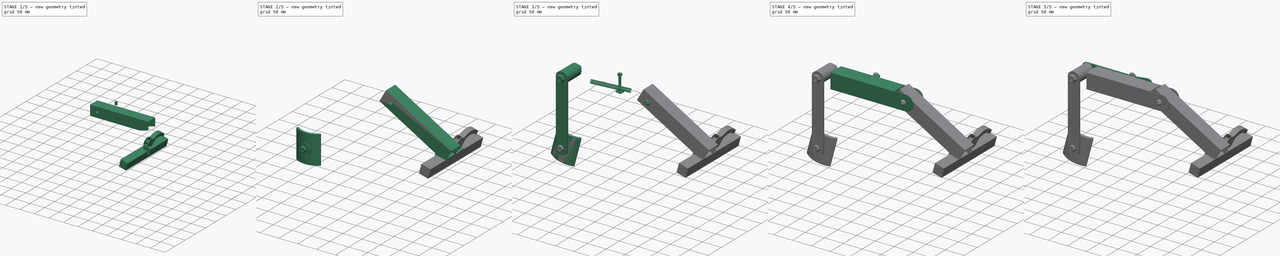
[diagram: build sequence overview — one tinted view per stage of 5, left to right]
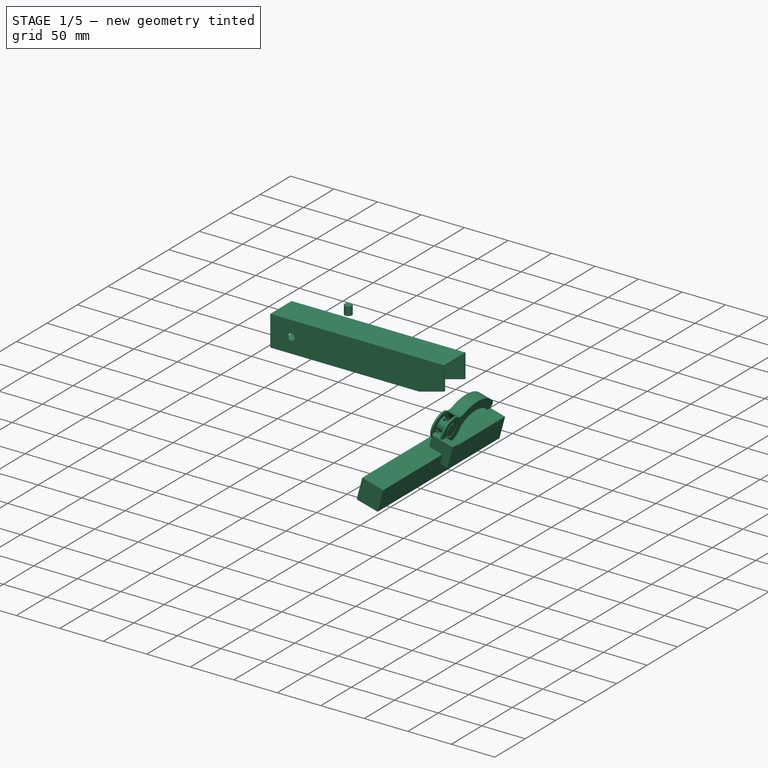
[diagram: stage 1 of 5 — iso view after this stage's code; geometry added in this stage tinted green]
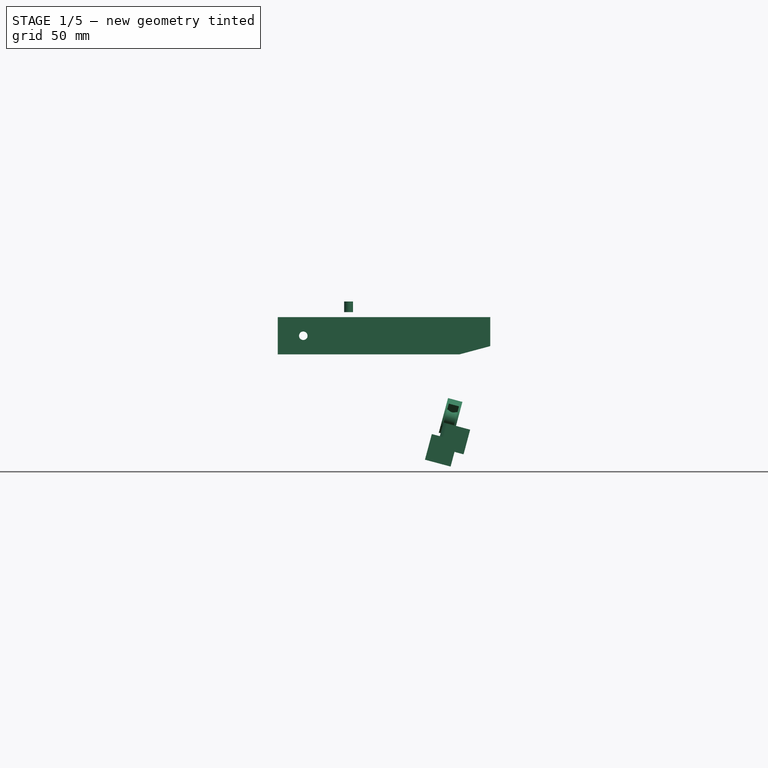
[diagram: stage 1 of 5 — front view after this stage's code; geometry added in this stage tinted green]
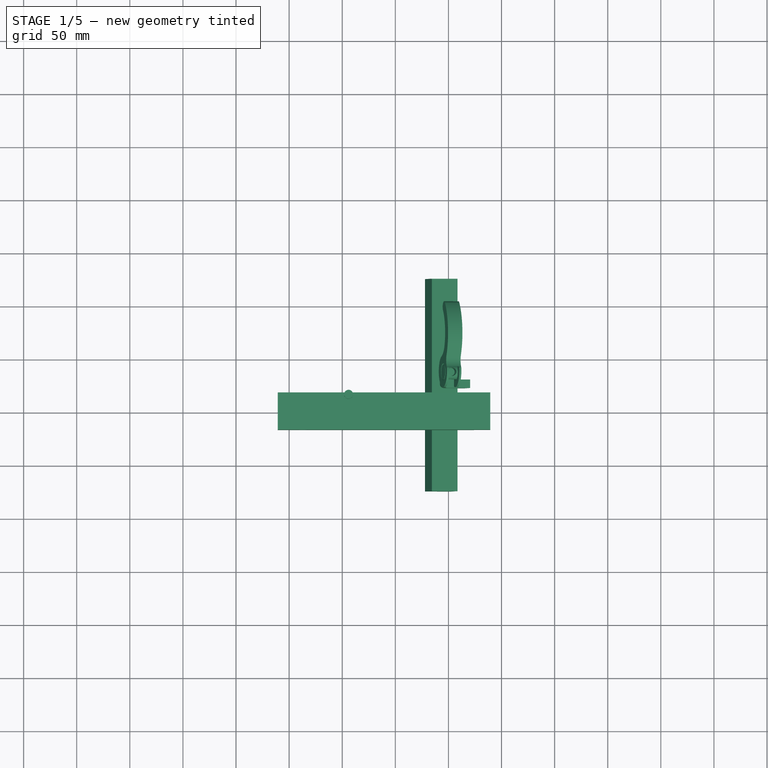
[diagram: stage 1 of 5 — top view after this stage's code; geometry added in this stage tinted green]
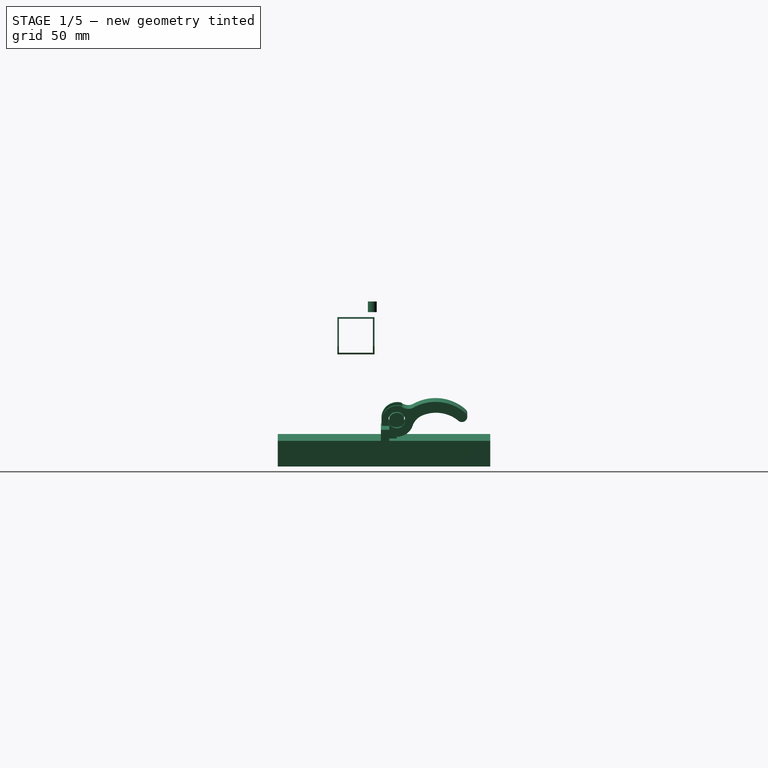
[diagram: stage 1 of 5 — right view after this stage's code; geometry added in this stage tinted green]
FCSTD DOCUMENT  (FreeCAD 0.16R6700 (Git))
Label: Bras_antiG
License: All rights reserved
LicenseURL: http://en.wikipedia.org/wiki/All_rights_reserved
objects: Part::Cut×26, Part::Box×21, Part::Cylinder×20, Part::Fillet×20, Part::MultiFuse×16, Part::FeaturePython×13, Part::Feature×10, App::DocumentObjectGroup×7, Sketcher::SketchObject×2, Part::Helix×1, Part::Sweep×1, Part::Part2DObjectPython×1, Part::Extrusion×1
note: 132 computed .brp shape members not serialized (recipe doc carries the construction recipe); baked Part::Feature solids carry a one-line shape summary decoded from their .brp

FEATURE [Part::Cylinder] Cylinder  label="Cylindre"
  Angle = 360
  Height = 10
  Placement = pos=(56,15,26) rot=(0,0,1;0rad)
  Radius = 4.2
FEATURE [Part::Box] Box005  label="Cube005"
  Height = 35
  Length = 200
  Width = 35
FEATURE [Part::Box] Box006  label="Cube006"
  Height = 32
  Length = 200
  Placement = pos=(0,1.5,1.5) rot=(0,0,1;0rad)
  Width = 32
FEATURE [Part::Cut] Cut004
  Base = -> Box005
  Tool = -> Box006
FEATURE [Part::Box] Box007  label="Cube007"
  Height = 30
  Length = 30
  Placement = pos=(-8,-14,-21.18) rot=(0,1,0;0.261799rad)
  Width = 52
FEATURE [Part::Cut] Cut005
  Base = -> Cut004
  Tool = -> Box007
FEATURE [Part::Cylinder] Cylinder001  label="Cylindre001"
  Angle = 360
  Height = 50
  Placement = pos=(176,42,17.5) rot=(1,0,0;1.5708rad)
  Radius = 4
FEATURE [Part::Cut] Cut006
  Base = -> Cut005
  Placement = pos=(189.344,17.0692,-13.8221) rot=(0,0,1;3.14159rad)
  Tool = -> Cylinder001
FEATURE [App::DocumentObjectGroup] Set002
FEATURE [App::DocumentObjectGroup] WorkPoints
  Group = -> [Set,Set001,Set002]
FEATURE [Part::Feature] Cylinder_Axis
  shape: bbox 2e-07 x 6.033 x 2e-07 mm, 0 faces, 0 solids (baked)
FEATURE [Part::Feature] Axis_extended
  shape: bbox 2e-07 x 18.1 x 2e-07 mm, 0 faces, 0 solids (baked)
FEATURE [App::DocumentObjectGroup] WorkAxis
  Group = -> [Cylinder_Axis,Axis_extended]
FEATURE [App::DocumentObjectGroup] WorkFeatures
  Group = -> [WorkPoints,Rot_Trans,WorkAxis]
FEATURE [Part::Box] Box017  label="Cube017"
  Height = 24
  Length = 26
  Placement = pos=(146,22,-105) rot=(0,0,1;0rad)
  Width = 8
FEATURE [Part::Fillet] Fillet015
  Base = -> Box017
  Edges = 1 edges r=4: [Edge1]
  Placement = pos=(25.3,1,38) rot=(0,1,0;0.261799rad)
FEATURE [Part::Box] Box018  label="Cube018"
  Height = 11
  Length = 8.3
  Placement = pos=(140.6,28,-96) rot=(0,1,0;0.261799rad)
  Width = 10
FEATURE [Part::MultiFuse] Fusion013
  Shapes = -> [Fillet015,Box018]
FEATURE [Part::Box] Box019  label="Cube019"
  Height = 25
  Length = 25
  Placement = pos=(127.9,-74,-113) rot=(0,1,0;0.261799rad)
  Width = 200
FEATURE [Part::FeaturePython] ScrewTap  label="M8x20.0-ScrewTap"  # Fasteners workbench fastener (typed FeaturePython)
  Placement = pos=(152,38,-70) rot=(0,1,0;0.261799rad)
  diameter = 9
  invert = false
  length = 20
  matchOuter = false
  offset = 0
  thread = true
FEATURE [Part::MultiFuse] Fusion014
  Shapes = -> [ScrewTap,Box019]
FEATURE [Sketcher::SketchObject] Sketch
  sketch-geometry (6):
    g0: ArcOfCircle CenterX=43.2504 CenterY=32.5348 CenterZ=0 NormalX=0 NormalY=0 NormalZ=1 Radius=41.9401 StartAngle=2.40373 EndAngle=3.65923
    g1: ArcOfCircle CenterX=-1.92886 CenterY=6.80872 CenterZ=0 NormalX=0 NormalY=0 NormalZ=1 Radius=10.0503 StartAngle=5.53887 EndAngle=6.80082
    g2: ArcOfCircle CenterX=20.0786 CenterY=-3.37712 CenterZ=0 NormalX=0 NormalY=0 NormalZ=1 Radius=15 StartAngle=2.9145 EndAngle=7.53868
    g3: ArcOfCircle CenterX=29.9765 CenterY=26.9675 CenterZ=0 NormalX=0 NormalY=0 NormalZ=1 Radius=16.9181 StartAngle=3.53297 EndAngle=4.39709
    g4: ArcOfCircle CenterX=44.3877 CenterY=32.9146 CenterZ=0 NormalX=0 NormalY=0 NormalZ=1 Radius=32.5082 StartAngle=2.43161 EndAngle=3.53297
    g5: ArcOfCircle CenterX=15.9302 CenterY=57.3739 CenterZ=0 NormalX=0 NormalY=0 NormalZ=1 Radius=5.01628 StartAngle=5.5732 EndAngle=8.68692
  constraints (13):
    c: Coincident(g1,g0)
    c: PointOnObject(g1,g-1)
    c: Tangent(g0,g1)
    c: Coincident(g2,g1)
    c: Coincident(g3,g2)
    c: Tangent(g3,g2)
    c: Coincident(g4,g3)
    c: Coincident(g5,g0)
    c: Coincident(g5,g4)
    c: Radius(g2) = 15
    c: Tangent(g4,g3)
    c: Tangent(g4,g5)
    c: Tangent(g5,g0)
FEATURE [Part::Part2DObjectPython] DWire  # Draft 2D object (typed FeaturePython)
  Base = -> Sketch
  ChamferSize = 0
  Closed = true
  End = (19.7344,54.1041,0)
  FilletRadius = 0
  Length = 141.472
  MakeFace = true
  Points = (6) [(12.2187,60.7483,0),(6.80477,11.7819,0),(5.46368,-2.14939e-13,0),(24.7301,10.8834,0),(14.3377,20.5139,0),(19.7344,54.1041,0)]
  Start = (12.2187,60.7483,0)
  Subdivisions = 0
FEATURE [Part::Extrusion] Extrude
  Base = -> DWire
  Dir = (0,0,14)
  Solid = false
FEATURE [Part::Cylinder] Cylinder017  label="Cylindre017"
  Angle = 360
  Height = 43
  Placement = pos=(19,-4,-10) rot=(0,0,1;0rad)
  Radius = 8
FEATURE [Part::Cut] Cut023
  Base = -> Extrude
  Tool = -> Cylinder017
FEATURE [Part::Box] Box020  label="Cube020"
  Height = 10
  Length = 32
  Placement = pos=(17,-28,2) rot=(0,0,1;0.593412rad)
  Width = 30
FEATURE [Part::Cut] Cut024
  Base = -> Cut023
  Tool = -> Box020
FEATURE [Part::Cylinder] Cylinder018  label="Cylindre018"
  Angle = 360
  Height = 14
  Placement = pos=(19,-4,0) rot=(0,0,1;0rad)
  Radius = 7
FEATURE [Part::Cylinder] Cylinder019  label="Cylindre019"
  Angle = 360
  Height = 50
  Placement = pos=(0,-4,7) rot=(0,1,0;1.5708rad)
  Radius = 4
FEATURE [Part::Cut] Cut025
  Base = -> Cylinder018
  Tool = -> Cylinder019
FEATURE [Part::MultiFuse] Fusion015
  Placement = pos=(150,42,-53.7) rot=(0,1,0;1.8326rad)
  Shapes = -> [Cut025,Cut024]
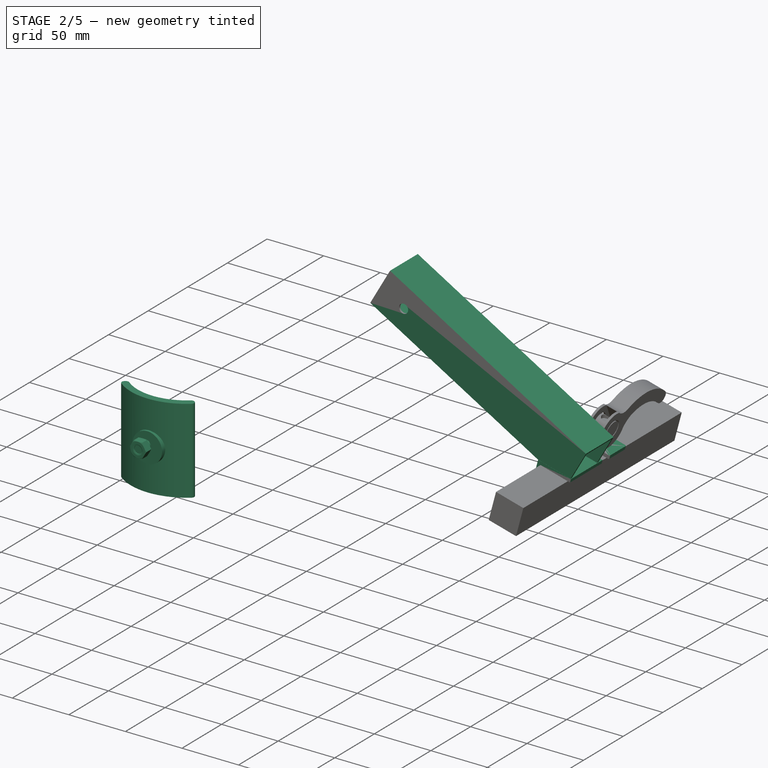
[diagram: stage 2 of 5 — iso view after this stage's code; geometry added in this stage tinted green]
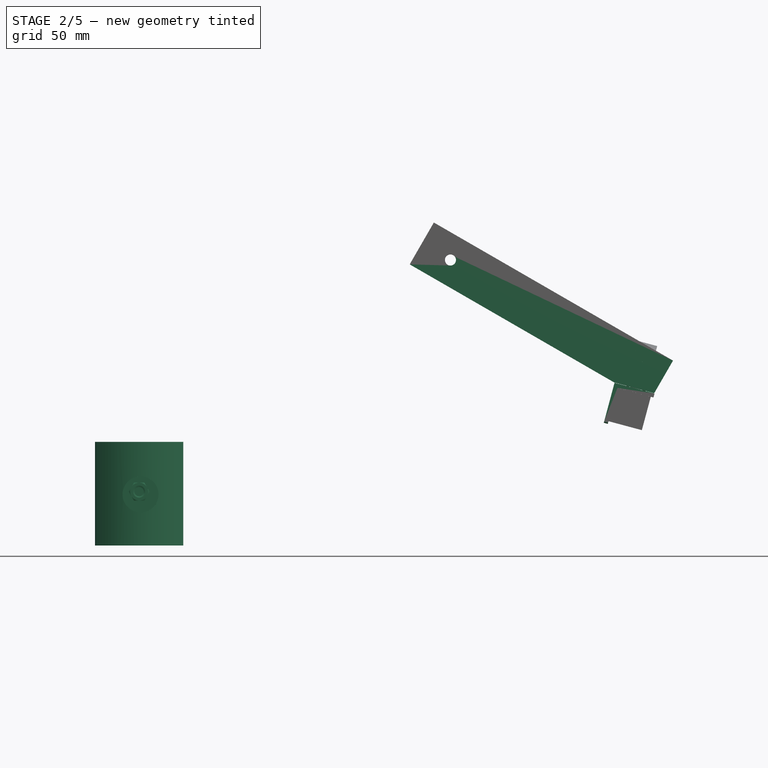
[diagram: stage 2 of 5 — front view after this stage's code; geometry added in this stage tinted green]
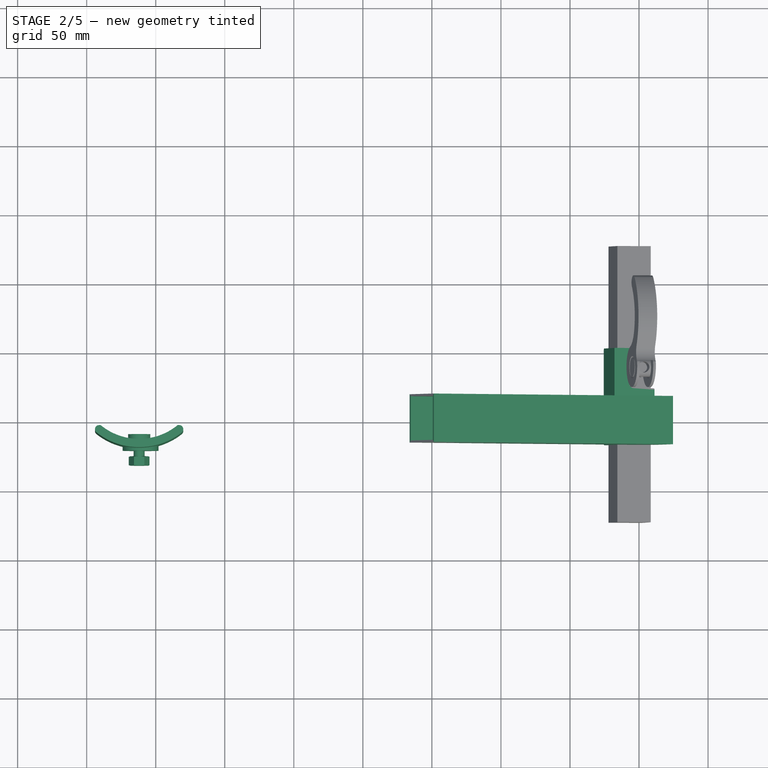
[diagram: stage 2 of 5 — top view after this stage's code; geometry added in this stage tinted green]
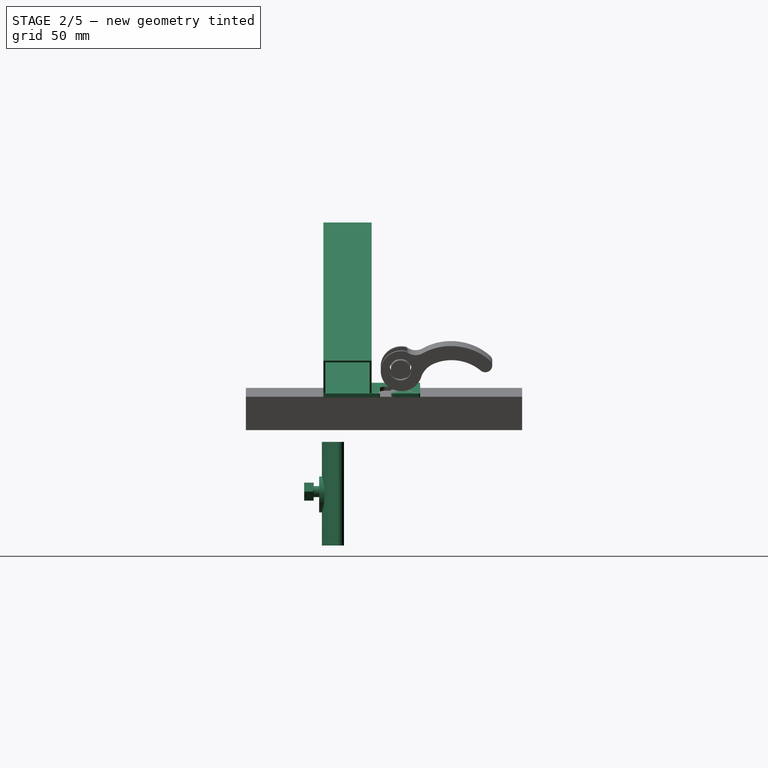
[diagram: stage 2 of 5 — right view after this stage's code; geometry added in this stage tinted green]
FEATURE [Part::Box] Box003  label="Cube003"
  Height = 30
  Length = 70
  Width = 30
FEATURE [Part::Box] Box004  label="Cube004"
  Height = 27
  Length = 70
  Width = 27
FEATURE [Part::Cut] Cut002
  Base = -> Box003
  Tool = -> Box004
FEATURE [Part::Cut] Cut003
  Base = -> Cut002
  Placement = pos=(197.429,-17.8616,-35.1226) rot=(-0.129428,-0.129428,0.983106;1.58783rad)
  Tool = -> Cylinder
FEATURE [Part::MultiFuse] Fusion003
  Placement = pos=(0.058657,0,7.21891) rot=(0,1,0;0.523599rad)
  Shapes = -> [Cut003,Cut006]
FEATURE [Part::Cylinder] Cylinder012  label="Cylindre012"
  Angle = 360
  Height = 8
  Placement = pos=(-211,-13,-166) rot=(1,0,0;1.5708rad)
  Radius = 13
FEATURE [Part::Cylinder] Cylinder013  label="Cylindre013"
  Angle = 360
  Height = 75
  Placement = pos=(-212,31,-203) rot=(0,0,1;0rad)
  Radius = 50
FEATURE [Part::Cylinder] Cylinder014  label="Cylindre014"
  Angle = 360
  Height = 75
  Placement = pos=(-212,31,-203) rot=(0,0,1;0rad)
  Radius = 44
FEATURE [Part::Cut] Cut017
  Base = -> Cylinder013
  Tool = -> Cylinder014
FEATURE [Part::MultiFuse] Fusion011
  Shapes = -> [Cylinder012,Cut017]
FEATURE [Part::Box] Box016  label="Cube016"
  Height = 150
  Length = 120
  Placement = pos=(-269,-3,-220) rot=(0,0,1;0rad)
  Width = 100
FEATURE [Part::Cut] Cut018
  Base = -> Fusion011
  Tool = -> Box016
FEATURE [Part::Fillet] Fillet012
  Base = -> Cut018
  Edges = 2 edges r=3: [Edge6,Edge8]
FEATURE [Part::Cylinder] Cylinder015  label="Cylindre015"
  Angle = 360
  Height = 20
  Placement = pos=(-212,-10,-164) rot=(1,0,0;1.5708rad)
  Radius = 4
FEATURE [Part::Cylinder] Cylinder016  label="Cylindre016"
  Angle = 360
  Height = 10
  Placement = pos=(-212,-9,-164) rot=(1,0,0;1.5708rad)
  Radius = 8
FEATURE [Part::FeaturePython] Screw005  label="M8x12-Screw"  # Fasteners workbench fastener (typed FeaturePython)
  Placement = pos=(-212,-19,-164) rot=(-1,0,0;1.5708rad)
  diameter = 8
  invert = false
  length = 1
  matchOuter = false
  offset = 0
  thread = false
  type = 6
FEATURE [Part::FeaturePython] Nut005  label="M8-Nut003"  # Fasteners workbench fastener (typed FeaturePython)
  Placement = pos=(-212,-25,-164) rot=(1,0,0;1.5708rad)
  diameter = 9
  invert = false
  matchOuter = false
  offset = 0
  thread = false
  type = 1
FEATURE [Part::MultiFuse] Fusion012
  Shapes = -> [Screw005,Nut005]
FEATURE [Part::Cut] Cut022
  Base = -> Fusion003
  Tool = -> Fusion013
FEATURE [Part::Fillet] Fillet016
  Base = -> Cut022
  Edges = 1 edges r=1: [Edge42]
FEATURE [Part::Fillet] Fillet017
  Base = -> Fillet016
  Edges = 3 edges r=1: [Edge18,Edge22,Edge42]
FEATURE [Part::Fillet] Fillet018
  Base = -> Fillet017
  Edges = 1 edges r=1: [Edge36]
FEATURE [Part::Fillet] Fillet019
  Base = -> Fillet018
  Edges = 1 edges r=1: [Edge49]
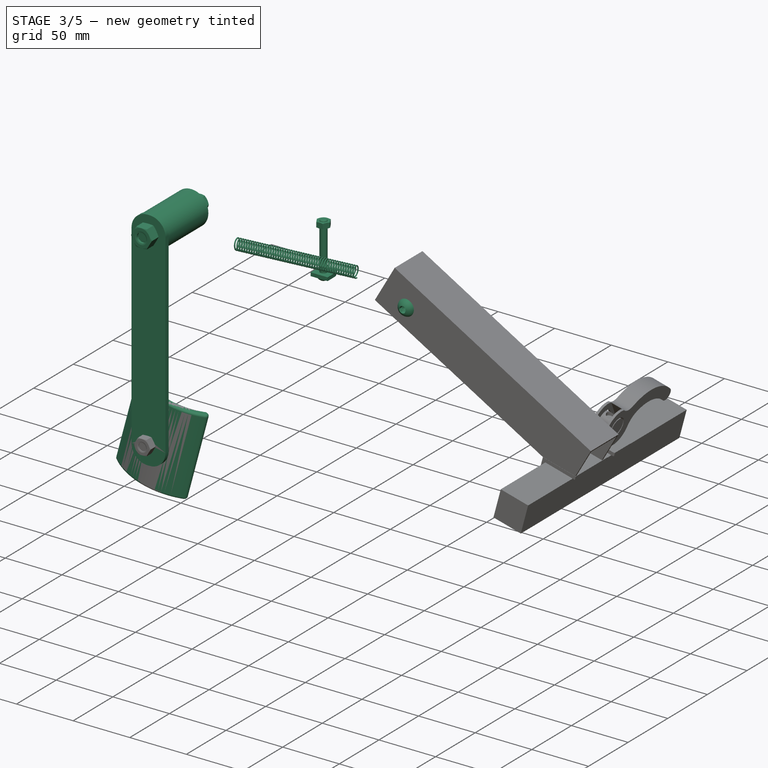
[diagram: stage 3 of 5 — iso view after this stage's code; geometry added in this stage tinted green]
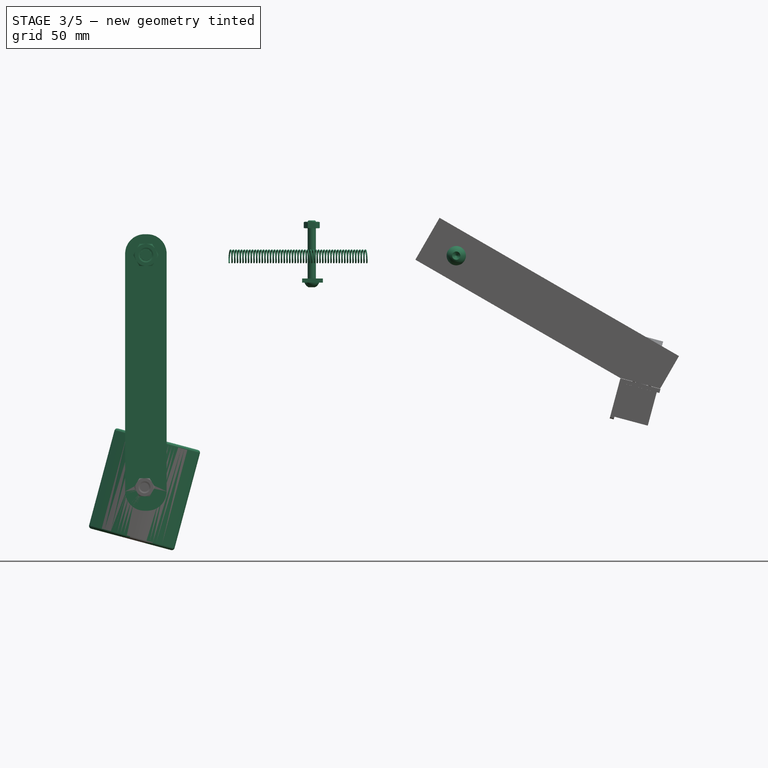
[diagram: stage 3 of 5 — front view after this stage's code; geometry added in this stage tinted green]
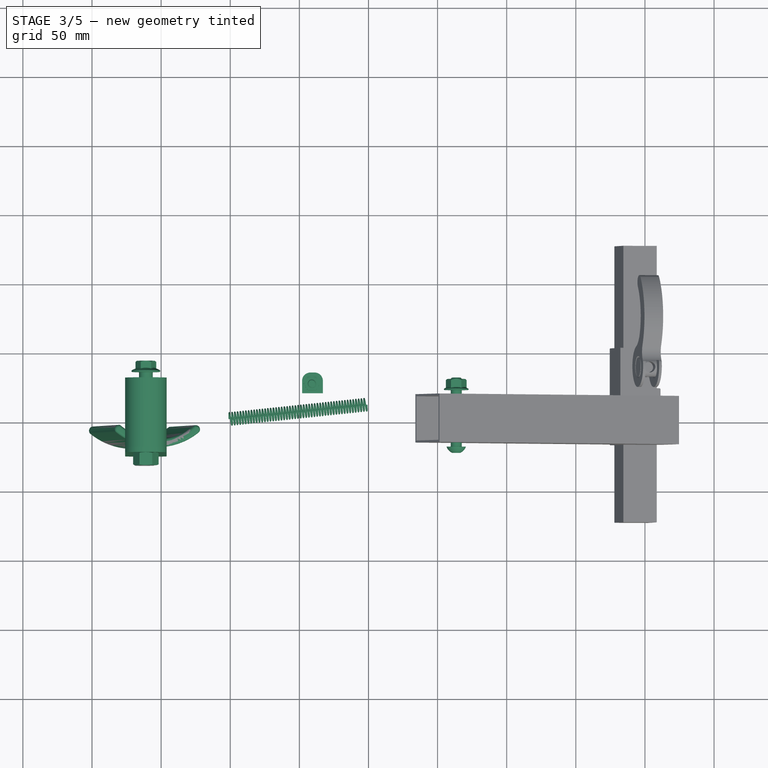
[diagram: stage 3 of 5 — top view after this stage's code; geometry added in this stage tinted green]
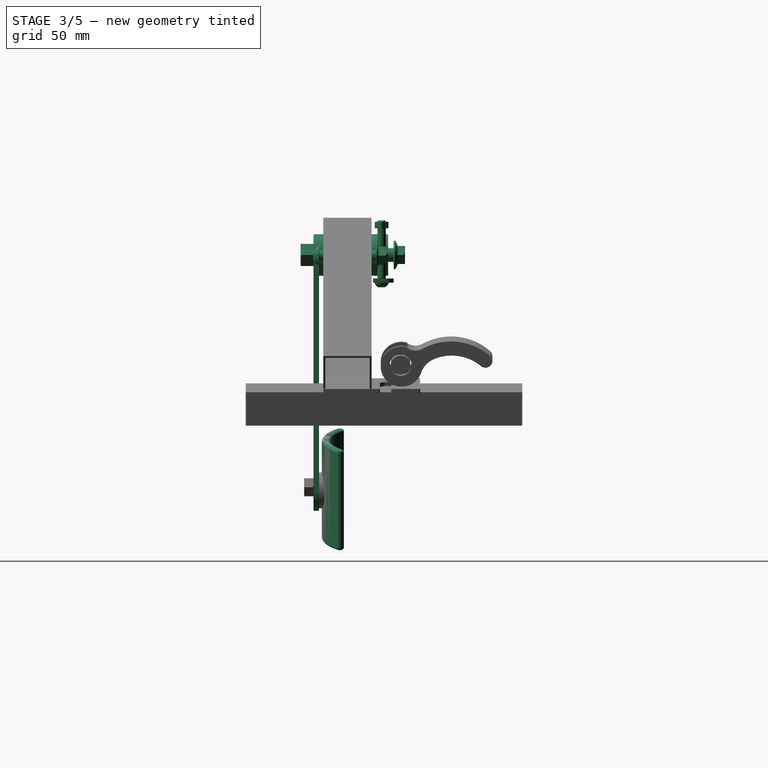
[diagram: stage 3 of 5 — right view after this stage's code; geometry added in this stage tinted green]
FEATURE [Part::FeaturePython] Screw  label="M8x50-Screw"  # Fasteners workbench fastener (typed FeaturePython)
  Placement = pos=(13.5,-21,3.5) rot=(1,0,0;1.5708rad)
  diameter = 5
  invert = false
  length = 9
  matchOuter = false
  offset = 0
  thread = false
  type = 20
FEATURE [Part::FeaturePython] Nut  label="M8-Nut"  # Fasteners workbench fastener (typed FeaturePython)
  Placement = pos=(13.5,20,3.5) rot=(-1,0,0;1.5708rad)
  diameter = 3
  invert = false
  matchOuter = false
  offset = 0
  thread = false
  type = 0
FEATURE [Part::Box] Box013  label="Cube013"
  Height = 3
  Length = 15
  Placement = pos=(-98,18,20) rot=(0,0,1;0rad)
  Width = 15
FEATURE [Part::Fillet] Fillet009
  Base = -> Box013
  Edges = 2 edges r=6: [Edge3,Edge7]
  Placement = pos=(0,0,-36) rot=(0,0,1;0rad)
FEATURE [Part::FeaturePython] Screw003  label="M6x45-Screw"  # Fasteners workbench fastener (typed FeaturePython)
  Placement = pos=(-91,24.3,-16) rot=(0,1,0;3.14159rad)
  diameter = 4
  invert = false
  length = 9
  matchOuter = false
  offset = 0
  thread = false
  type = 20
FEATURE [Part::FeaturePython] Nut003  label="M6-Nut"  # Fasteners workbench fastener (typed FeaturePython)
  Placement = pos=(-91,24.3,23.3) rot=(0,0,1;0rad)
  diameter = 8
  invert = false
  matchOuter = false
  offset = 0
  thread = false
  type = 1
FEATURE [Part::MultiFuse] Fusion007
  Shapes = -> [Nut003,Screw003]
FEATURE [Part::Helix] Helix  label="Hélice"
  Angle = 0
  Height = 100
  LocalCoord = 0
  Pitch = 2
  Placement = pos=(10,6,76) rot=(0,1,0;1.5708rad)
  Radius = 4.5
  Style = 1
FEATURE [Sketcher::SketchObject] Sketch001
  Placement = pos=(0,6,0) rot=(1,0,0;1.5708rad)
  sketch-geometry (1):
    g0: Circle CenterX=9.9963 CenterY=71.4848 CenterZ=0 NormalX=0 NormalY=0 NormalZ=1 Radius=0.513048
FEATURE [Part::Sweep] Sweep
  Frenet = true
  Placement = pos=(-160,-8,-73) rot=(0,0,1;0.10472rad)
  Sections = -> [Sketch001]
  Solid = true
  Spine = -> Helix
  Transition = 1
FEATURE [Part::MultiFuse] Fusion008
  Shapes = -> [Nut,Screw]
FEATURE [Part::Box] Box014  label="Cube014"
  Height = 30
  Length = 200
  Placement = pos=(-225,-25,18) rot=(0,1,0;1.5708rad)
  Width = 4
FEATURE [Part::Fillet] Fillet010
  Base = -> Box014
  Edges = 4 edges r=14: [Edge2,Edge4,Edge6,Edge8]
  Placement = pos=(0,0,1) rot=(0,0,1;0rad)
FEATURE [Part::Box] Box015  label="Cube015"
  Height = 30
  Length = 30
  Placement = pos=(-225,-21,-11) rot=(0,0,1;0rad)
  Width = 50
FEATURE [Part::Fillet] Fillet011
  Base = -> Box015
  Edges = 4 edges r=14.8: [Edge2,Edge4,Edge6,Edge8]
FEATURE [Part::MultiFuse] Fusion009
  Shapes = -> [Fillet010,Fillet011]
FEATURE [Part::Cylinder] Cylinder011  label="Cylindre011"
  Angle = 360
  Height = 70
  Placement = pos=(-210,37,4) rot=(1,0,0;1.5708rad)
  Radius = 5
FEATURE [Part::Cut] Cut016
  Base = -> Fusion009
  Placement = pos=(-1,0,0) rot=(0,0,1;0rad)
  Tool = -> Cylinder011
FEATURE [Part::FeaturePython] Screw004  label="M10x65-Screw"  # Fasteners workbench fastener (typed FeaturePython)
  Placement = pos=(-211,33,4) rot=(-1,0,0;1.5708rad)
  diameter = 4
  invert = false
  length = 9
  matchOuter = false
  offset = 0
  thread = false
  type = 1
FEATURE [Part::FeaturePython] Nut004  label="M10-Nut"  # Fasteners workbench fastener (typed FeaturePython)
  Placement = pos=(-211,-25,4) rot=(1,0,0;1.5708rad)
  diameter = 4
  invert = false
  matchOuter = false
  offset = 0
  thread = false
  type = 2
FEATURE [Part::MultiFuse] Fusion010
  Shapes = -> [Nut004,Screw004]
FEATURE [Part::Fillet] Fillet013
  Base = -> Fillet012
  Edges = 2 edges r=2: [Edge4,Edge17]
FEATURE [Part::Fillet] Fillet014
  Base = -> Fillet013
  Edges = 2 edges r=2: [Edge3,Edge14]
FEATURE [Part::Cut] Cut019
  Base = -> Fillet014
  Tool = -> Cylinder015
FEATURE [Part::Cut] Cut020
  Base = -> Cut016
  Tool = -> Cylinder015
FEATURE [Part::Cut] Cut021
  Base = -> Cut019
  Placement = pos=(35.6108,0,-60.5089) rot=(0,1,0;0.261799rad)
  Tool = -> Cylinder016
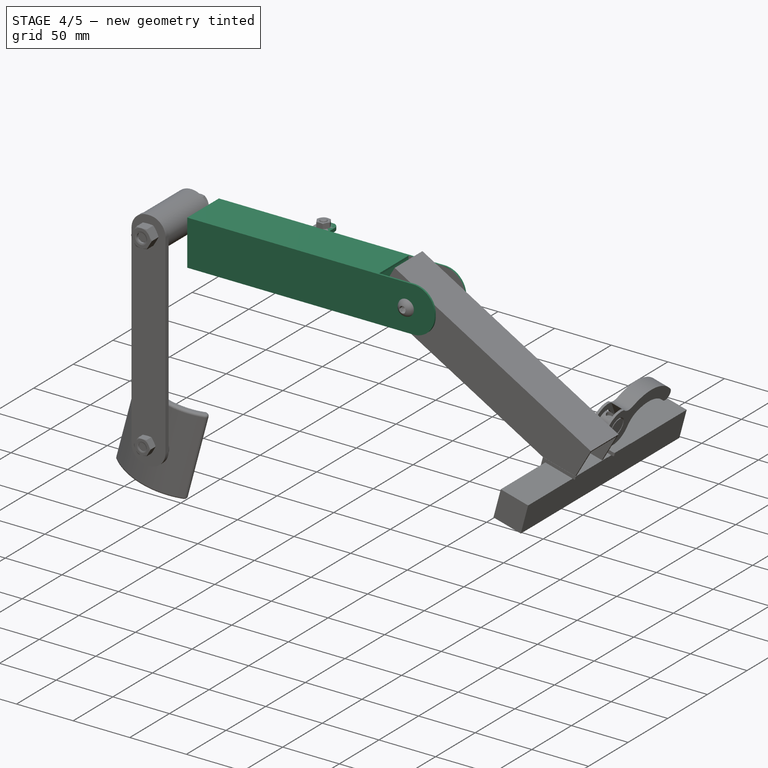
[diagram: stage 4 of 5 — iso view after this stage's code; geometry added in this stage tinted green]
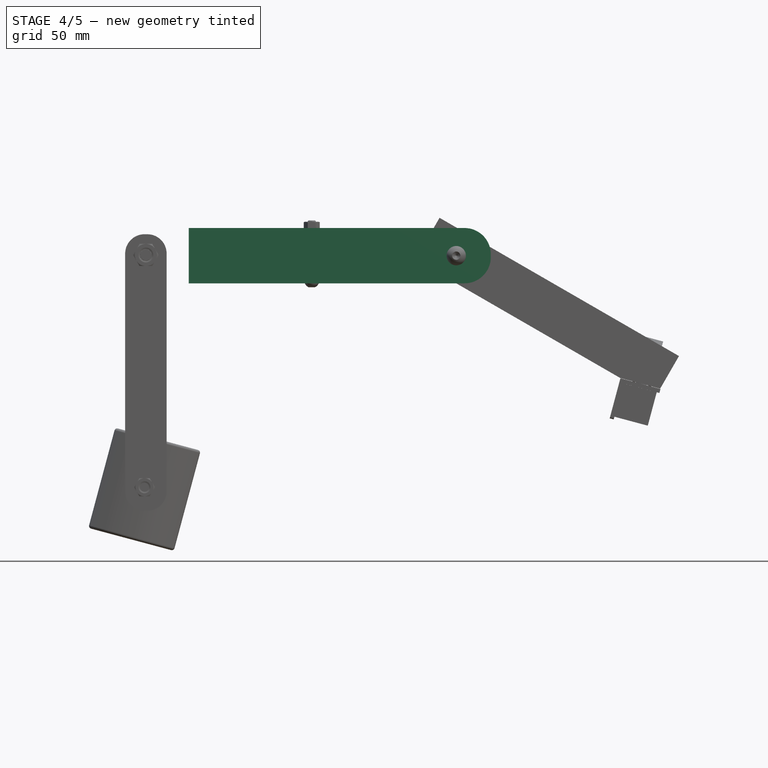
[diagram: stage 4 of 5 — front view after this stage's code; geometry added in this stage tinted green]
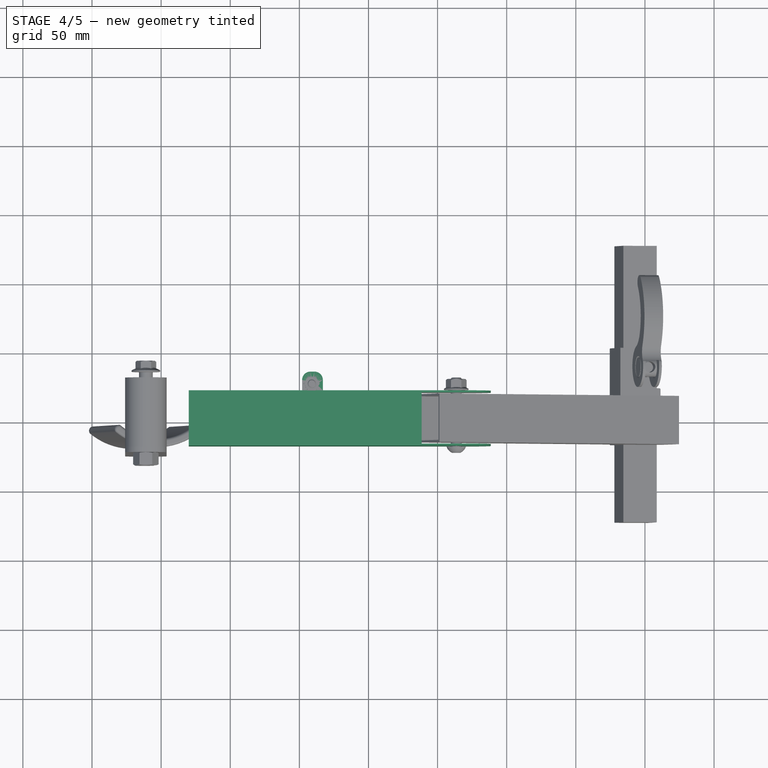
[diagram: stage 4 of 5 — top view after this stage's code; geometry added in this stage tinted green]
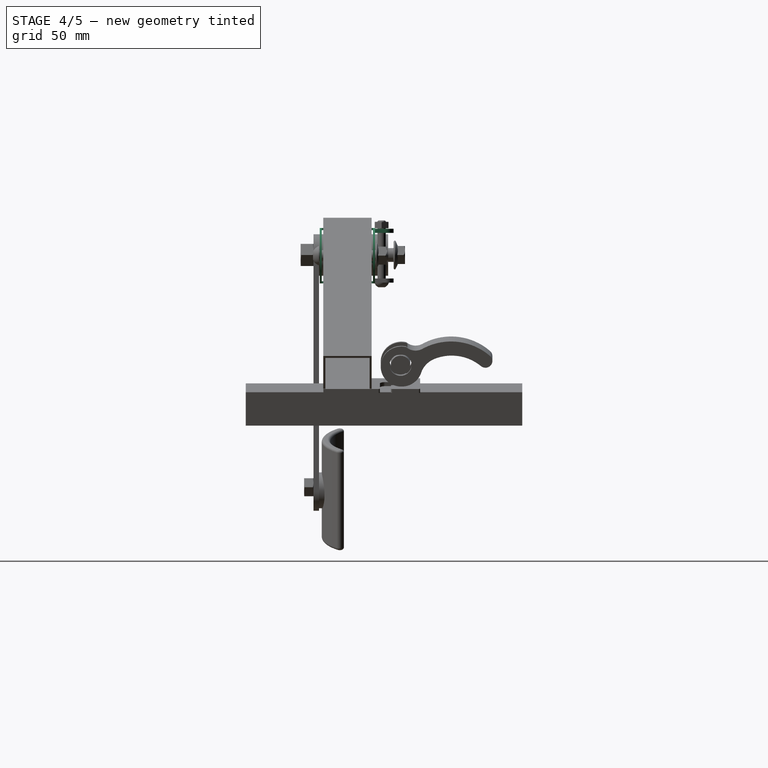
[diagram: stage 4 of 5 — right view after this stage's code; geometry added in this stage tinted green]
FEATURE [Part::Box] Box  label="Cube"
  Height = 40
  Length = 250
  Width = 40
FEATURE [Part::Box] Box001  label="Cube001"
  Height = 37
  Length = 250
  Placement = pos=(0,1.5,1.5) rot=(0,0,1;0rad)
  Width = 37
FEATURE [Part::Cut] Cut
  Base = -> Box
  Tool = -> Box001
FEATURE [Part::Box] Box002  label="Cube002"
  Height = 57
  Length = 50
  Placement = pos=(200,1.5,-8.5) rot=(0,0,1;0rad)
  Width = 37
FEATURE [Part::Cut] Cut001
  Base = -> Cut
  Tool = -> Box002
FEATURE [Part::Fillet] Fillet
  Base = -> Cut001
  Edges = 4 edges r=19: [Edge13,Edge17,Edge19,Edge23]
FEATURE [Part::Cylinder] Cylinder002  label="Cylindre002"
  Angle = 360
  Height = 50
  Placement = pos=(225,45,20) rot=(1,0,0;1.5708rad)
  Radius = 4
FEATURE [Part::Cut] Cut007
  Base = -> Fillet
  Placement = pos=(-211.5,-20.5,-16.5) rot=(0,0,1;0rad)
  Tool = -> Cylinder002
FEATURE [Part::Box] Box010  label="Cube010"
  Height = 10
  Length = 30
  Placement = pos=(-77,0,-1) rot=(0,0,1;0rad)
  Width = 30
FEATURE [Part::Fillet] Fillet005
  Base = -> Box010
  Edges = 4 edges r=4.5: [Edge2,Edge4,Edge6,Edge8]
FEATURE [Part::Cut] Cut012
  Base = -> Cut007
  Tool = -> Fillet005
FEATURE [App::DocumentObjectGroup] Set
FEATURE [Part::Feature] CenterFace
  shape: bbox 2e-07 x 2e-07 x 2e-07 mm, 0 faces, 0 solids (baked)
FEATURE [App::DocumentObjectGroup] Set001
  Group = -> [CenterFace]
FEATURE [Part::Feature] Axis1
  shape: bbox 2e-07 x 241.3 x 2e-07 mm, 0 faces, 0 solids (baked)
FEATURE [Part::Feature] Axis2
  shape: bbox 2e-07 x 241.3 x 2e-07 mm, 0 faces, 0 solids (baked)
FEATURE [Part::Feature] Line
  shape: bbox 482.6 x 2e-07 x 482.6 mm, 0 faces, 0 solids (baked)
FEATURE [Part::Feature] Center
  shape: bbox 2e-07 x 2e-07 x 2e-07 mm, 0 faces, 0 solids (baked)
FEATURE [Part::Feature] Base
  shape: bbox 2e-07 x 2e-07 x 2e-07 mm, 0 faces, 0 solids (baked)
FEATURE [Part::Feature] Line001
  shape: bbox 13.5 x 29 x 3.5 mm, 0 faces, 0 solids (baked)
FEATURE [Part::Feature] Line002
  shape: bbox 13.5 x 29 x 3.5 mm, 0 faces, 0 solids (baked)
FEATURE [App::DocumentObjectGroup] Rot_Trans
  Group = -> [Axis1,Axis2,Line,Center,Base,Line001,Line002]
FEATURE [Part::Box] Box011  label="Cube011"
  Height = 50
  Length = 50
  Placement = pos=(-230,-24,-23) rot=(0,0,1;0rad)
  Width = 50
FEATURE [Part::Cut] Cut013
  Base = -> Cut012
  Tool = -> Box011
FEATURE [Part::FeaturePython] Nut001  label="M8-Nut001"  # Fasteners workbench fastener (typed FeaturePython)
  Placement = pos=(-180,11.5,3) rot=(0,1,0;1.5708rad)
  diameter = 3
  invert = false
  matchOuter = false
  offset = 0
  thread = false
  type = 2
FEATURE [Part::MultiFuse] Fusion004
  Shapes = -> [Cut013,Nut001]
FEATURE [Part::Fillet] Fillet006
  Base = -> Fusion004
  Edges = 1 edges r=1: [Edge72]
FEATURE [Part::Fillet] Fillet007
  Base = -> Fillet006
  Edges = 1 edges r=1: [Edge6]
FEATURE [Part::Cylinder] Cylinder009  label="Cylindre009"
  Angle = 360
  Height = 10
  Placement = pos=(-155,0,-2) rot=(0,0,1;0rad)
  Radius = 2
FEATURE [Part::Box] Box012  label="Cube012"
  Height = 3
  Length = 15
  Placement = pos=(-98,18,20) rot=(0,0,1;0rad)
  Width = 15
FEATURE [Part::Fillet] Fillet008
  Base = -> Box012
  Edges = 2 edges r=6: [Edge3,Edge7]
FEATURE [Part::Cylinder] Cylinder010  label="Cylindre010"
  Angle = 360
  Height = 50
  Placement = pos=(-91,24.3,-18) rot=(0,0,1;0rad)
  Radius = 3.5
FEATURE [Part::MultiFuse] Fusion006
  Shapes = -> [Fillet008,Fillet009,Fillet007]
FEATURE [Part::Cut] Cut015
  Base = -> Fusion006
  Tool = -> Cylinder010
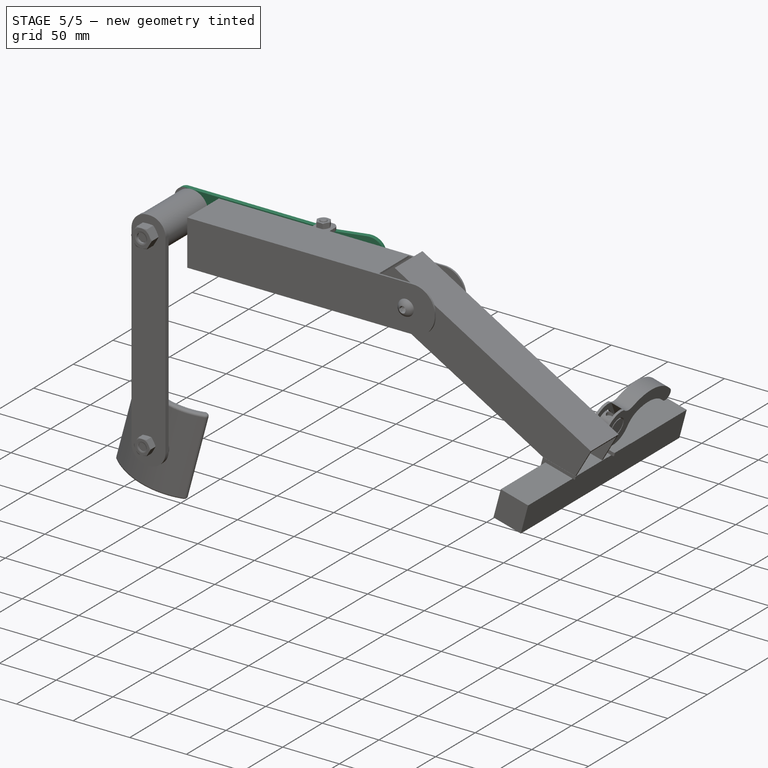
[diagram: stage 5 of 5 — iso view after this stage's code; geometry added in this stage tinted green]
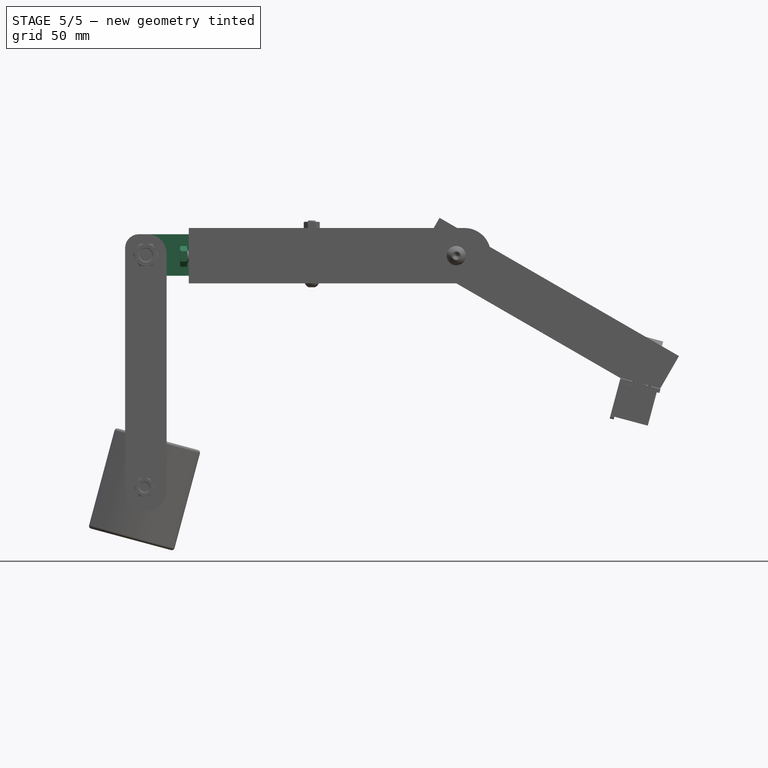
[diagram: stage 5 of 5 — front view after this stage's code; geometry added in this stage tinted green]
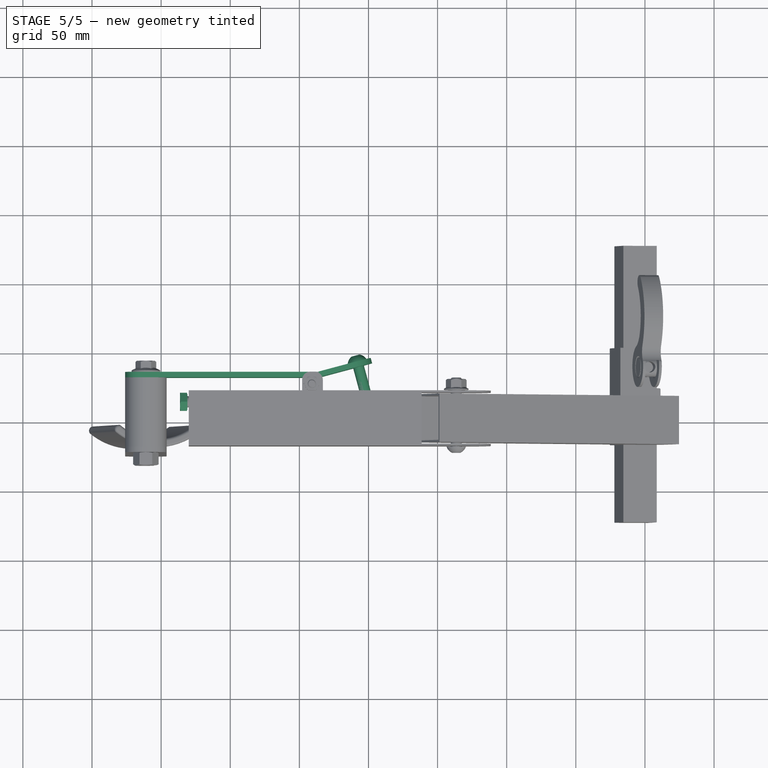
[diagram: stage 5 of 5 — top view after this stage's code; geometry added in this stage tinted green]
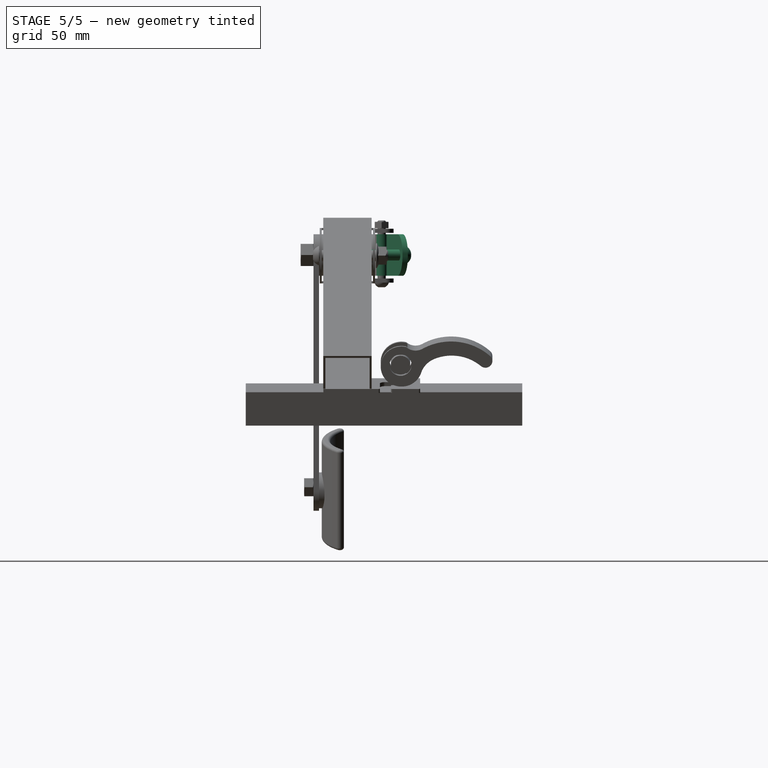
[diagram: stage 5 of 5 — right view after this stage's code; geometry added in this stage tinted green]
FEATURE [Part::Box] Box008  label="Cube008"
  Height = 30
  Length = 140
  Width = 4
FEATURE [Part::Cylinder] Cylinder003  label="Cylindre003"
  Angle = 360
  Height = 10
  Placement = pos=(15,6,15) rot=(1,0,0;1.5708rad)
  Radius = 5
FEATURE [Part::Cut] Cut008
  Base = -> Box008
  Tool = -> Cylinder003
FEATURE [Part::Fillet] Fillet001
  Base = -> Cut008
  Edges = 2 edges r=10: [Edge2,Edge4]
FEATURE [Part::Box] Box009  label="Cube009"
  Height = 30
  Length = 40
  Placement = pos=(138.95,0.12,0) rot=(0,0,-1;0.261799rad)
  Width = 4
FEATURE [Part::MultiFuse] Fusion
  Shapes = -> [Fillet001,Box009]
FEATURE [Part::Cylinder] Cylinder004  label="Cylindre004"
  Angle = 360
  Height = 30
  Placement = pos=(135,9,0) rot=(0,0,1;0rad)
  Radius = 5
FEATURE [Part::Cylinder] Cylinder005  label="Cylindre005"
  Angle = 360
  Height = 30
  Placement = pos=(135,9,0) rot=(0,0,1;0rad)
  Radius = 3.5
FEATURE [Part::Cut] Cut009
  Base = -> Cylinder004
  Placement = pos=(0,-0.31,0) rot=(0,0,1;0rad)
  Tool = -> Cylinder005
FEATURE [Part::MultiFuse] Fusion001
  Shapes = -> [Fusion,Cut009]
FEATURE [Part::Fillet] Fillet002
  Base = -> Fusion001
  Edges = 1 edges r=1: [Edge45]
FEATURE [Part::Fillet] Fillet003
  Base = -> Fillet002
  Edges = 1 edges r=1: [Edge23]
FEATURE [Part::Fillet] Fillet004
  Base = -> Fillet003
  Edges = 2 edges r=14: [Edge60,Edge66]
FEATURE [Part::Cylinder] Cylinder006  label="Cylindre006"
  Angle = 360
  Height = 20
  Placement = pos=(167.413,-9.6558,15.0036) rot=(-0.965926,0.258819,0;1.5708rad)
  Radius = 3.5
FEATURE [Part::Cut] Cut010
  Base = -> Fillet004
  Tool = -> Cylinder006
FEATURE [Part::FeaturePython] Screw001  label="M8x40-Screw"  # Fasteners workbench fastener (typed FeaturePython)
  Placement = pos=(167.775,-7.6583,14.9999) rot=(0.092692,0.704063,-0.704063;3.32644rad)
  diameter = 5
  invert = false
  length = 7
  matchOuter = false
  offset = 0
  thread = false
  type = 20
FEATURE [Part::Cylinder] Cylinder007  label="Cylindre007"
  Angle = 360
  Height = 10
  Placement = pos=(179,23,10) rot=(0,0,1;0rad)
  Radius = 2
FEATURE [Part::Cut] Cut011
  Base = -> Screw001
  Tool = -> Cylinder007
FEATURE [Part::MultiFuse] Fusion002
  Placement = pos=(-226,33,19) rot=(1,0,0;3.14159rad)
  Shapes = -> [Cut011,Cut010]
FEATURE [Part::FeaturePython] Screw002  label="M8x40-Screw001"  # Fasteners workbench fastener (typed FeaturePython)
  Placement = pos=(-181,11.5,3) rot=(0,-1,0;1.5708rad)
  diameter = 9
  invert = false
  length = 2
  matchOuter = false
  offset = 0
  thread = false
  type = 13
FEATURE [Part::FeaturePython] Nut002  label="M8-Nut002"  # Fasteners workbench fastener (typed FeaturePython)
  Placement = pos=(-157,11.5,3) rot=(0,1,0;1.5708rad)
  diameter = 3
  invert = false
  matchOuter = false
  offset = 0
  thread = false
  type = 2
FEATURE [Part::Cylinder] Cylinder008  label="Cylindre008"
  Angle = 360
  Height = 10
  Placement = pos=(-153,6,3) rot=(1,0,0;1.5708rad)
  Radius = 3
FEATURE [Part::Cut] Cut014
  Base = -> Cylinder008
  Tool = -> Cylinder009
FEATURE [Part::MultiFuse] Fusion005
  Shapes = -> [Nut002,Cut014]
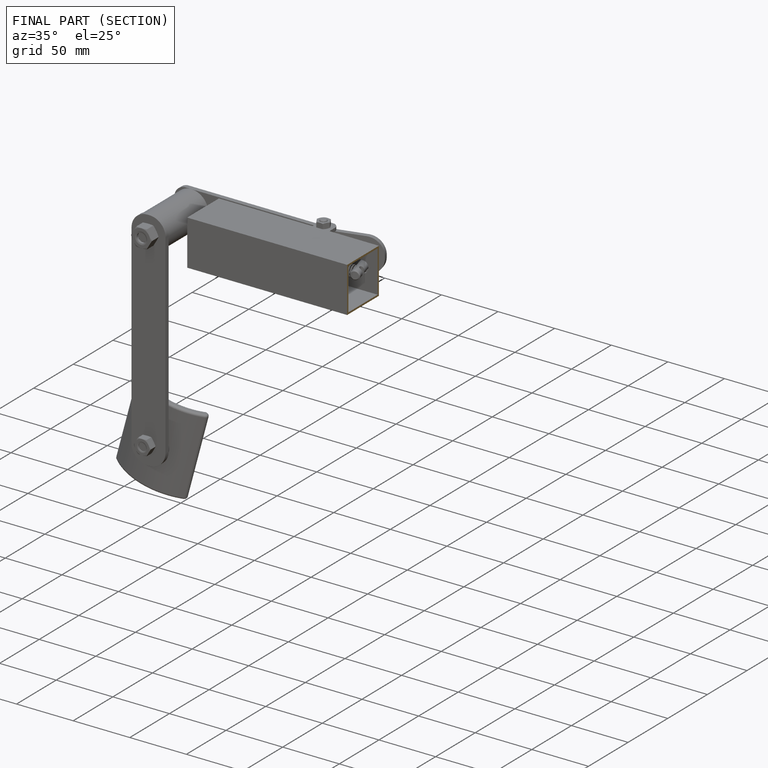
[diagram: finished part — half-section view (interior)]
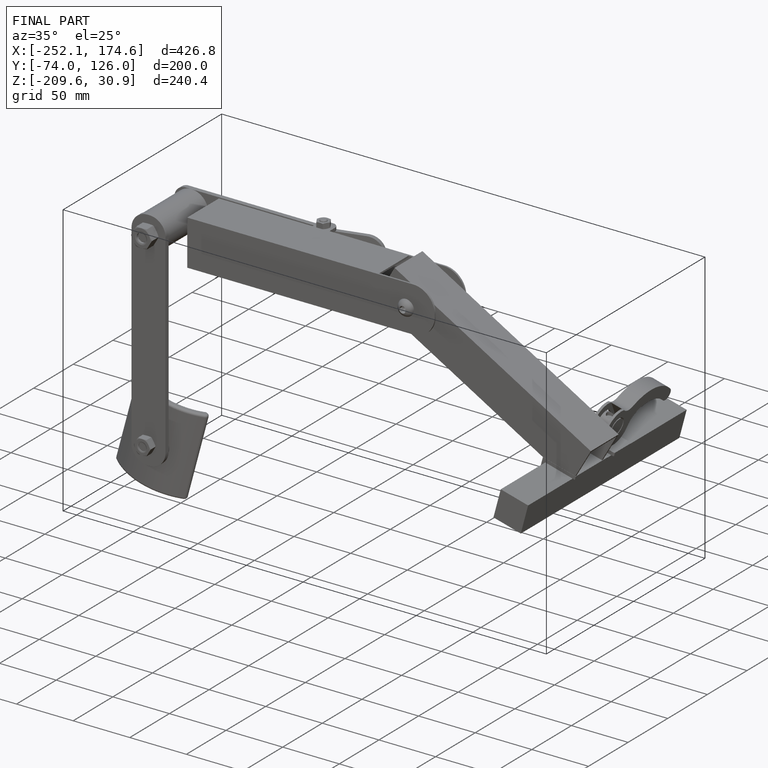
[diagram: finished part — iso view with bounding-box wireframe]
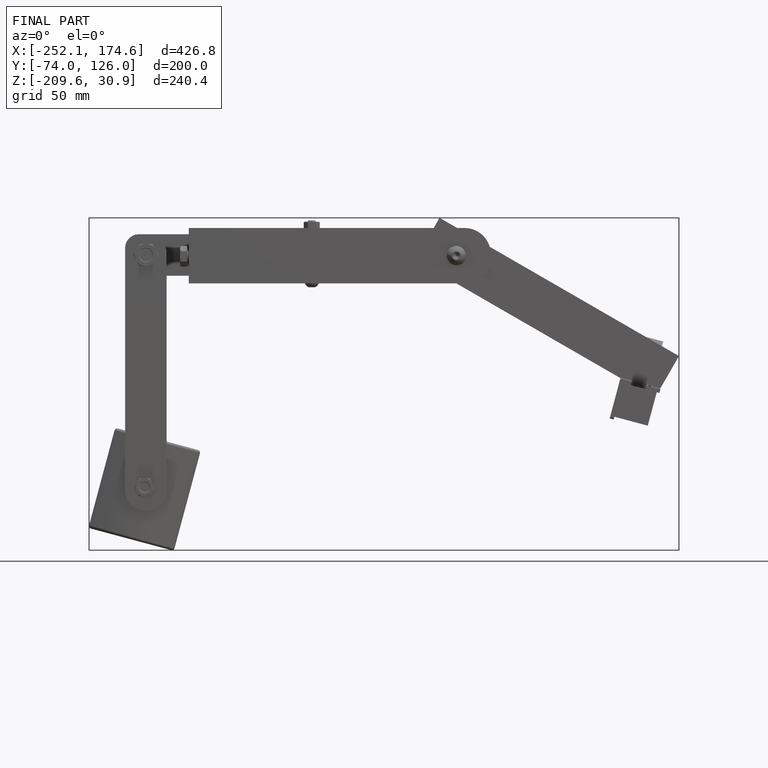
[diagram: finished part — front view with bounding-box wireframe]
